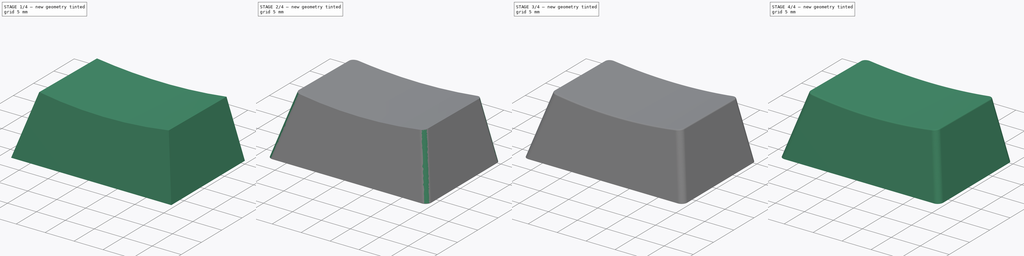
[diagram: build sequence overview — one tinted view per stage of 4, left to right]
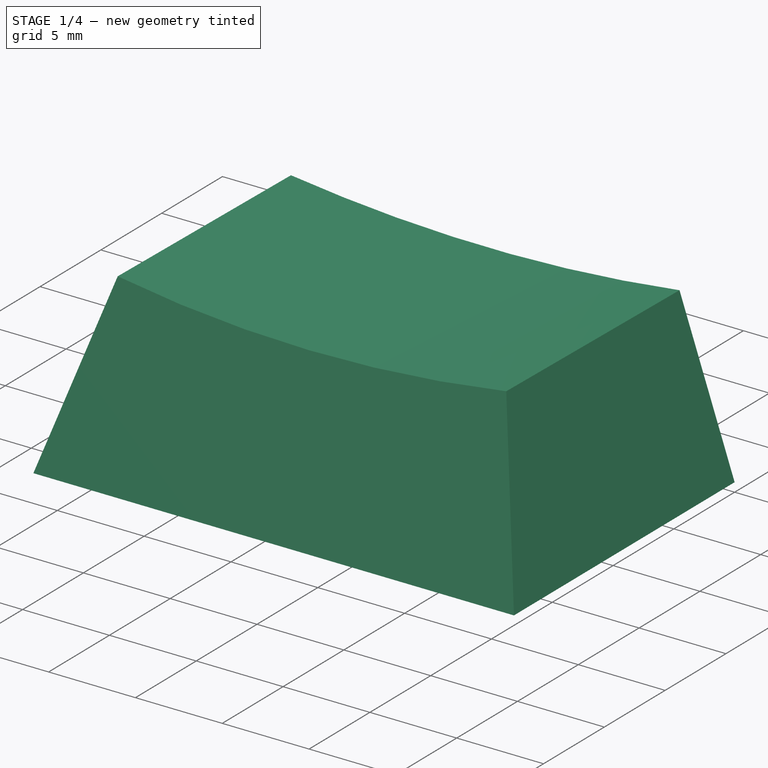
[diagram: stage 1 of 4 — iso view after this stage's code; geometry added in this stage tinted green]
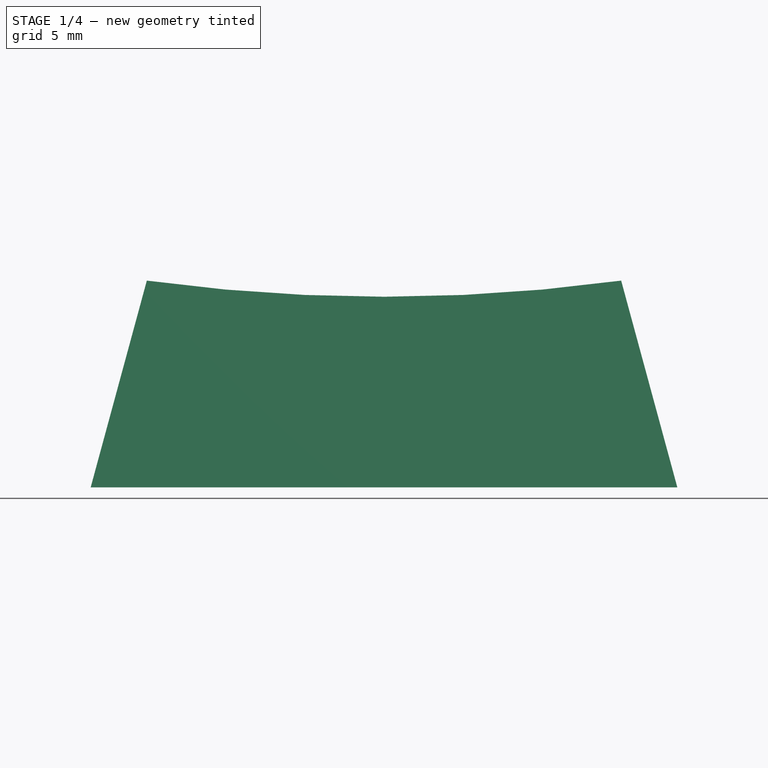
[diagram: stage 1 of 4 — front view after this stage's code; geometry added in this stage tinted green]
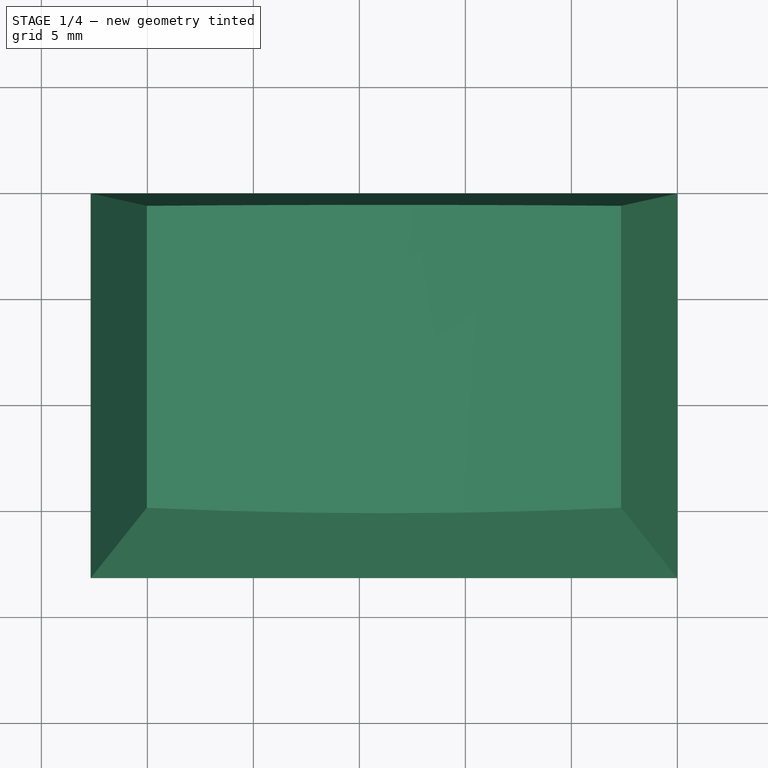
[diagram: stage 1 of 4 — top view after this stage's code; geometry added in this stage tinted green]
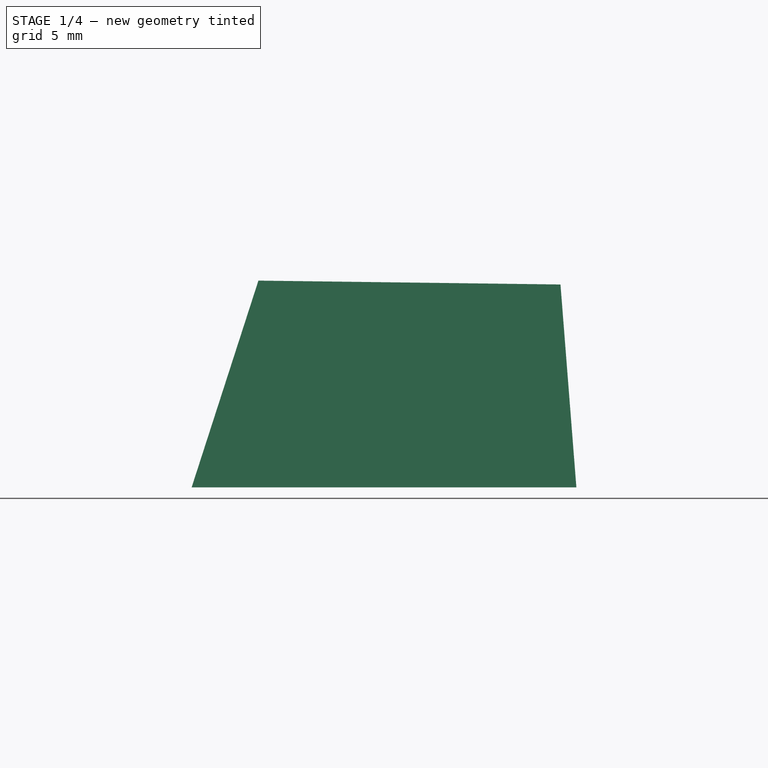
[diagram: stage 1 of 4 — right view after this stage's code; geometry added in this stage tinted green]
FCSTD DOCUMENT  (FreeCAD 1.1R20260325 (Git shallow))
Label: Caps
License: Creative Commons Attribution 4.0
objects: Sketcher::SketchObject×9, Part::DatumPlane×6, PartDesign::Pad×5, Part::DatumLine×4, PartDesign::Fillet×3, PartDesign::Pocket×2, PartDesign::Chamfer×2, App::Point×1, Spreadsheet::Sheet×1, Image::ImagePlane×1, PartDesign::SubtractiveLoft×1, PartDesign::Thickness×1, PartDesign::Body×1
note: 61 computed .brp shape members not serialized (recipe doc carries the construction recipe); baked Part::Feature solids carry a one-line shape summary decoded from their .brp

FEATURE [App::Point] Origin001
  Role = Origin
FEATURE [Spreadsheet::Sheet] Spreadsheet  label="data"
  cells = A1='row; B1='back; C1='front; A2==hiddenref(Body.Row.String); B2(back)==.B5; C2(front)==.C5; A3='R1; B3=8.1; C3=11.5; A4='R2; B4=7.9; C4=10.2; A5='R3; B5=9.6; C5=10.25; A6='R4; B6=12.25; C6=11.9
  expr: .cells.Bind.B2.C2 = tuple(.cells; <<B>> + str(hiddenref(Body.Row) + 3); <<C>> + str(hiddenref(Body.Row) + 3))
FEATURE [Image::ImagePlane] sa_vs_oem_profile_1  label="sa-vs-oem-profile-1"
  Placement = pos=(17,0,-5) rot=(1,0,0;1.5708rad)
  XSize = 117
  YSize = 39
  expr: .Placement.Base.x = -1.5 mm + (<<OEM>>.Row - 1) * 18.5 mm
FEATURE [Sketcher::SketchObject] Sketch
  ArcFitTolerance = 1e-06
  AttachmentSupport = -> [Origin]
  ExternalTypes = [0,0]
  FullyConstrained = true
  MakeInternals = false
  MapMode = 5
  Placement = pos=(0,0,0) rot=(0.57735,0.57735,0.57735;2.0944rad)
  _ExternalGeoVersion = 1
  expr: Constraints[7] = <<data>>.front
  expr: Constraints[9] = <<data>>.back
  sketch-geometry (4):
    g0: LineSegment StartX=0 StartY=0 StartZ=0 EndX=-0.75 EndY=9.57066 EndZ=0
    g1: LineSegment StartX=-0.75 StartY=9.57066 StartZ=0 EndX=-14.9988 EndY=9.75359 EndZ=0
    g2: LineSegment StartX=-14.9988 StartY=9.75359 StartZ=0 EndX=-18.15 EndY=0 EndZ=0
    g3: LineSegment StartX=-18.15 StartY=0 StartZ=0 EndX=0 EndY=0 EndZ=0
  constraints (12):
    c: Coincident(g-1,g0)
    c: Coincident(g0,g1)
    c: Coincident(g1,g2)
    c: PointOnObject(g2,g-1)
    c: Coincident(g2,g3)
    c: Coincident(g3,g0)
    c: Distance(g1,g1) = 14.25
    c: Distance(g2,g2) = 10.25
    c: DistanceX(g3,g3) = 18.15
    c: Distance(g0,g0) = 9.6
    c: DistanceX(g0,g0) = 0.75
    c: Angle(g1,g3) = 0.012838
FEATURE [PartDesign::Pad] Pad  label="Main pad"
  Direction = (1,0,0)
  Length = 27.675
  Length2 = 10
  Profile = -> Sketch
  ReferenceAxis = -> Sketch [N_Axis]
  Reversed = true
  SideType = 0
  Suppressed = false
  Type = 0
  Type2 = 0
  expr: Length = href(<<OEM>>.Widthmm)
FEATURE [Sketcher::SketchObject] Sketch001
  ArcFitTolerance = 1e-06
  AttachmentSupport = -> [Pad]
  ExternalGeometry = -> [Pad]
  ExternalTypes = [0]
  FullyConstrained = true
  MakeInternals = false
  MapMode = 5
  Placement = pos=(0,-16.4346,5.30965) rot=(1,0,0;1.2583rad)
  _ExternalGeoVersion = 1
  expr: Constraints[5] = href(<<OEM>>.Widthmm) - 2.65 mm * 2
  sketch-geometry (5):
    g0: LineSegment [constr] StartX=-27.675 StartY=4.67012 StartZ=0 EndX=0 EndY=4.67012 EndZ=0
    g1: GeomPoint [constr] X=-13.8375 Y=4.67012 Z=0
    g2: LineSegment StartX=-25.025 StartY=4.67012 StartZ=0 EndX=-2.65 EndY=4.67012 EndZ=0
    g3: ArcOfCircle CenterX=-13.8375 CenterY=82.4952 CenterZ=0 NormalX=0 NormalY=0 NormalZ=1 AngleXU=0 Radius=78.6251 StartAngle=4.56962 EndAngle=4.85516
    g4: GeomPoint [constr] X=-13.8375 Y=3.87012 Z=0
  constraints (12):
    c: PointOnObject(g0,g-2)
    c: Horizontal(g0)
    c: Symmetric(g0,g0,g1)
    c: PointOnObject(g2,g0)
    c: Symmetric(g2,g2,g1)
    c: DistanceX(g2,g2) = 22.375
    c: Coincident(g3,g2)
    c: Coincident(g3,g2)
    c: PointOnObject(g4,g3)
    c: Vertical(g4,g1)
    c: DistanceY(g4,g1) = 0.8
    c: Coincident(g0,g-3)
FEATURE [Sketcher::SketchObject] Sketch002
  ArcFitTolerance = 1e-06
  AttachmentSupport = -> [Pad]
  ExternalGeometry = -> [Pad]
  ExternalTypes = [0,0]
  FullyConstrained = true
  MakeInternals = false
  MapMode = 5
  Placement = pos=(0,-16.4346,5.30965) rot=(1,0,0;1.2583rad)
  _ExternalGeoVersion = 1
  expr: Constraints[15] = href(<<OEM>>.Widthmm) - 2.65 mm * 2
  sketch-geometry (8):
    g0: LineSegment StartX=-27.675 StartY=-5.57988 StartZ=0 EndX=-24.5079 EndY=6.67012 EndZ=0
    g1: LineSegment StartX=0 StartY=-5.57988 StartZ=0 EndX=-3.16707 EndY=6.67012 EndZ=0
    g2: LineSegment StartX=-27.675 StartY=6.67012 StartZ=0 EndX=-24.5079 EndY=6.67012 EndZ=0
    g3: LineSegment StartX=0 StartY=6.67012 StartZ=0 EndX=-3.16707 EndY=6.67012 EndZ=0
    g4: GeomPoint [constr] X=-25.025 Y=4.67012 Z=0
    g5: GeomPoint [constr] X=-2.65 Y=4.67012 Z=0
    g6: LineSegment StartX=-27.675 StartY=-5.57988 StartZ=0 EndX=-27.675 EndY=6.67012 EndZ=0
    g7: LineSegment StartX=0 StartY=6.67012 StartZ=0 EndX=0 EndY=-5.57988 EndZ=0
  constraints (21):
    c: Coincident(g0,g-3)
    c: Coincident(g1,g-3)
    c: Horizontal(g0,g1)
    c: Horizontal(g2)
    c: PointOnObject(g3,g-2)
    c: Horizontal(g3)
    c: PointOnObject(g3,g1)
    c: Horizontal(g2,g3)
    c: DistanceY(g-4,g2) = 2
    c: Equal(g2,g3)
    c: Coincident(g0,g2)
    c: PointOnObject(g4,g0)
    c: PointOnObject(g5,g1)
    c: PointOnObject(g5,g-4)
    c: PointOnObject(g4,g-4)
    c: DistanceX(g4,g5) = 22.375
    c: Coincident(g6,g0)
    c: Coincident(g6,g2)
    c: Vertical(g6)
    c: Coincident(g7,g3)
    c: Coincident(g7,g1)
FEATURE [Sketcher::SketchObject] Sketch003
  ArcFitTolerance = 1e-06
  AttachmentSupport = -> [Pad]
  ExternalGeometry = -> [Pad]
  ExternalTypes = [0,0,0]
  FullyConstrained = true
  MakeInternals = false
  MapMode = 5
  Placement = pos=(0,0,0) rot=(0,0.678924,0.734209;3.14159rad)
  _ExternalGeoVersion = 1
  expr: Constraints[20] = href(<<OEM>>.Widthmm) - 2.65 mm * 2
  sketch-geometry (8):
    g0: LineSegment StartX=27.675 StartY=0 StartZ=0 EndX=24.4729 EndY=11.6 EndZ=0
    g1: LineSegment StartX=27.675 StartY=11.6 StartZ=0 EndX=27.675 EndY=0 EndZ=0
    g2: LineSegment StartX=0 StartY=11.6 StartZ=0 EndX=0 EndY=0 EndZ=0
    g3: LineSegment StartX=0 StartY=0 StartZ=0 EndX=3.20208 EndY=11.6 EndZ=0
    g4: LineSegment StartX=27.675 StartY=11.6 StartZ=0 EndX=24.4729 EndY=11.6 EndZ=0
    g5: LineSegment StartX=0 StartY=11.6 StartZ=0 EndX=3.20208 EndY=11.6 EndZ=0
    g6: GeomPoint [constr] X=2.65 Y=9.6 Z=0
    g7: GeomPoint [constr] X=25.025 Y=9.6 Z=0
  constraints (21):
    c: Coincident(g1,g0)
    c: Coincident(g2,g-1)
    c: Coincident(g2,g3)
    c: Vertical(g1)
    c: Horizontal(g4)
    c: PointOnObject(g5,g-2)
    c: Horizontal(g5)
    c: Horizontal(g5,g4)
    c: Coincident(g3,g5)
    c: Equal(g4,g5)
    c: Coincident(g2,g5)
    c: DistanceY(g-3,g2) = 2
    c: Coincident(g1,g4)
    c: PointOnObject(g-3,g1)
    c: Coincident(g0,g4)
    c: Horizontal(g0,g2)
    c: PointOnObject(g7,g0)
    c: PointOnObject(g6,g3)
    c: PointOnObject(g6,g-3)
    c: PointOnObject(g7,g-3)
    c: DistanceX(g6,g7) = 22.375
FEATURE [PartDesign::SubtractiveLoft] SubtractiveLoft  label="Sides"
  BaseFeature = -> Pad
  Closed = false
  Profile = -> Sketch002
  Refine = true
  Ruled = false
  Sections = -> [Sketch003]
  Suppressed = false
FEATURE [PartDesign::Pocket] Pocket  label="Top cylinder"
  BaseFeature = -> SubtractiveLoft
  Direction = (0,0.999918,-0.0128376)
  Length = 5
  Length2 = 5
  Profile = -> Sketch001
  ReferenceAxis = -> Sketch [Edge2]
  SideType = 0
  Suppressed = false
  Type = 1
  Type2 = 0
  expr: Suppressed = href(<<OEM>>.Width) > 6
FEATURE [PartDesign::Thickness] Thickness
  Base = -> Pocket [Face5]
  BaseFeature = -> Pocket
  Intersection = false
  Join = 0
  Mode = 0
  Reversed = true
  SupportTransform = false
  Suppressed = false
  Value = 1.5
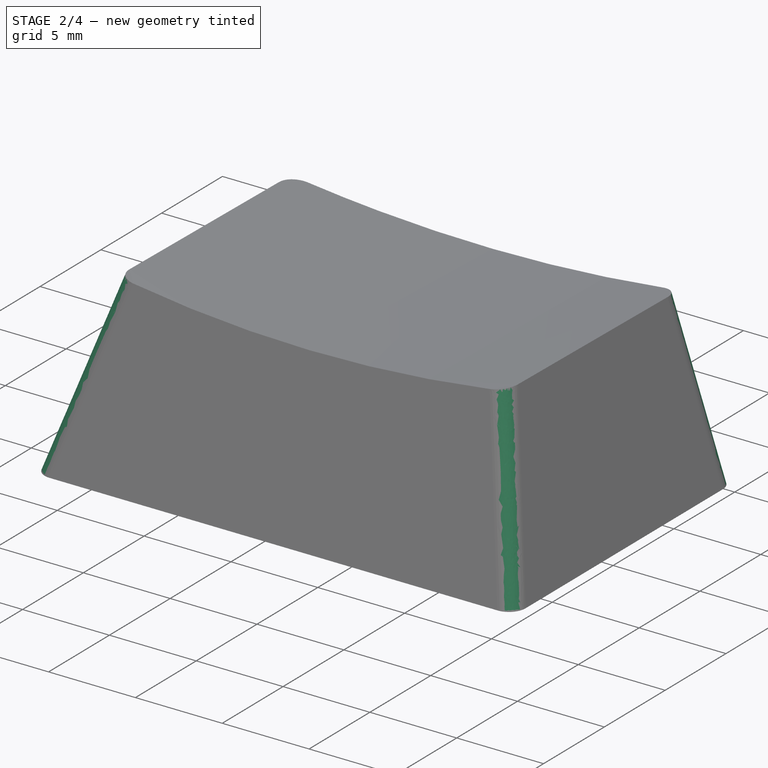
[diagram: stage 2 of 4 — iso view after this stage's code; geometry added in this stage tinted green]
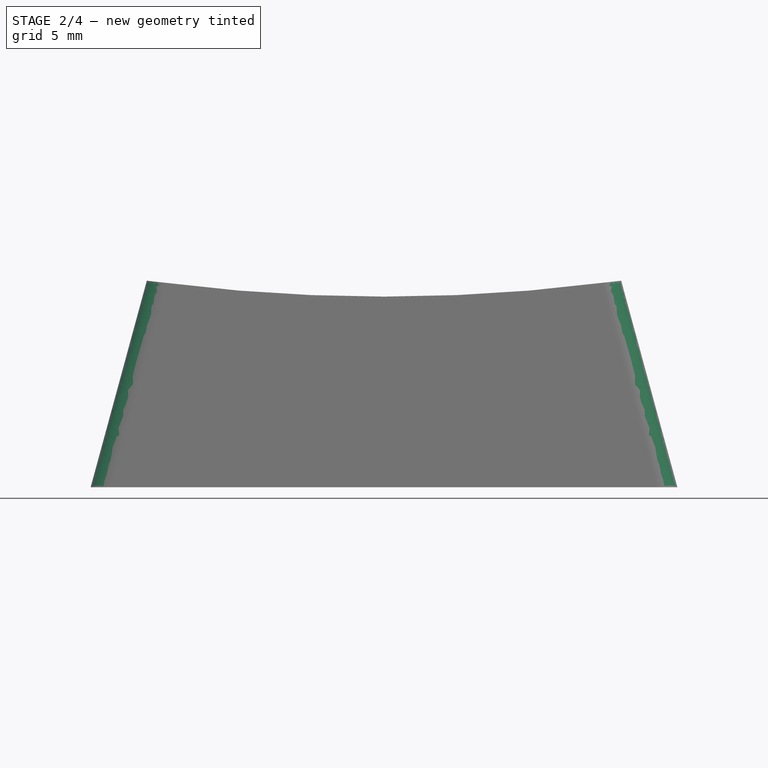
[diagram: stage 2 of 4 — front view after this stage's code; geometry added in this stage tinted green]
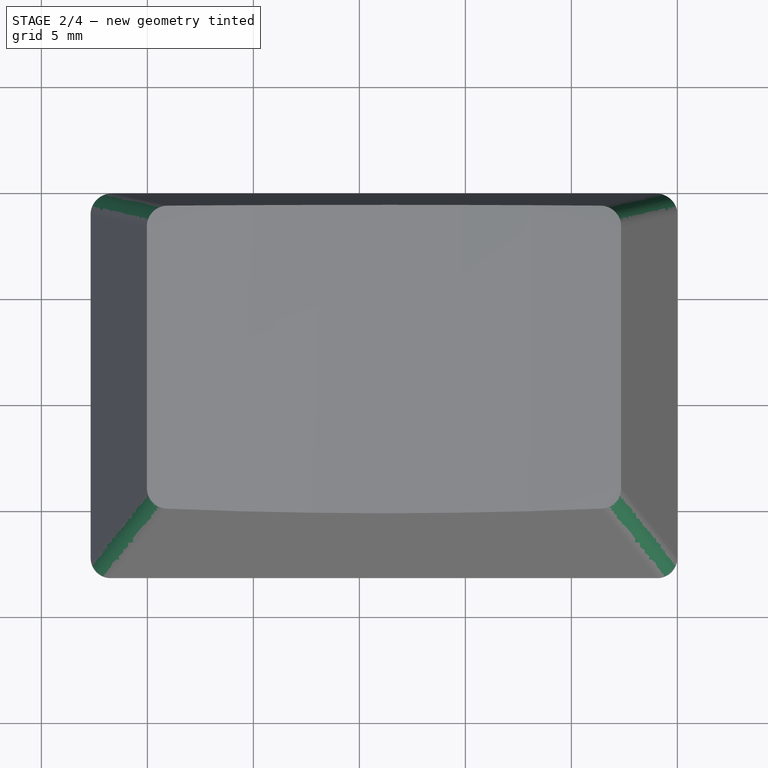
[diagram: stage 2 of 4 — top view after this stage's code; geometry added in this stage tinted green]
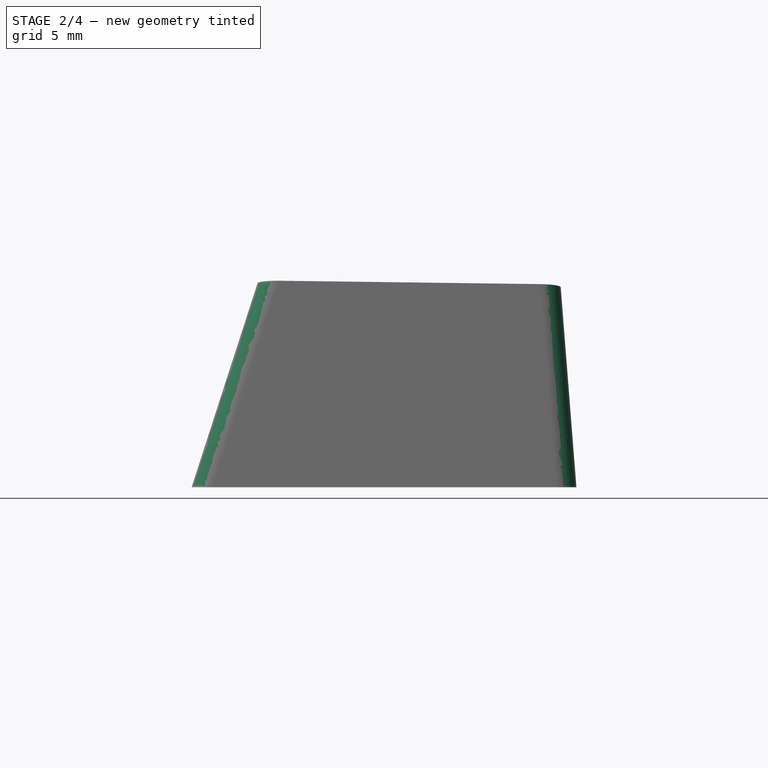
[diagram: stage 2 of 4 — right view after this stage's code; geometry added in this stage tinted green]
FEATURE [Sketcher::SketchObject] Sketch004
  ArcFitTolerance = 1e-06
  AttachmentOffset = pos=(0,0,1.3) rot=(0,0,1;0rad)
  AttachmentSupport = -> [Origin]
  ExternalTypes = [0]
  FullyConstrained = true
  MakeInternals = false
  MapMode = 5
  Placement = pos=(0,0,1.3) rot=(0,0,1;0rad)
  _ExternalGeoVersion = 1
  expr: Constraints[2] = href(<<OEM>>.Widthmm) / 2
  sketch-geometry (13):
    g0: Circle CenterX=-13.8375 CenterY=-9 CenterZ=0 NormalX=0 NormalY=0 NormalZ=1 AngleXU=0 Radius=2.8
    g1: LineSegment StartX=-14.4375 StartY=-6.85 StartZ=0 EndX=-13.2375 EndY=-6.85 EndZ=0
    g2: LineSegment StartX=-13.2375 StartY=-6.85 StartZ=0 EndX=-13.2375 EndY=-8.4 EndZ=0
    g3: LineSegment StartX=-13.2375 StartY=-8.4 StartZ=0 EndX=-11.6875 EndY=-8.4 EndZ=0
    g4: LineSegment StartX=-11.6875 StartY=-8.4 StartZ=0 EndX=-11.6875 EndY=-9.6 EndZ=0
    g5: LineSegment StartX=-11.6875 StartY=-9.6 StartZ=0 EndX=-13.2375 EndY=-9.6 EndZ=0
    g6: LineSegment StartX=-13.2375 StartY=-9.6 StartZ=0 EndX=-13.2375 EndY=-11.15 EndZ=0
    g7: LineSegment StartX=-13.2375 StartY=-11.15 StartZ=0 EndX=-14.4375 EndY=-11.15 EndZ=0
    g8: LineSegment StartX=-14.4375 StartY=-11.15 StartZ=0 EndX=-14.4375 EndY=-9.6 EndZ=0
    g9: LineSegment StartX=-14.4375 StartY=-9.6 StartZ=0 EndX=-15.9875 EndY=-9.6 EndZ=0
    g10: LineSegment StartX=-15.9875 StartY=-9.6 StartZ=0 EndX=-15.9875 EndY=-8.4 EndZ=0
    g11: LineSegment StartX=-15.9875 StartY=-8.4 StartZ=0 EndX=-14.4375 EndY=-8.4 EndZ=0
    g12: LineSegment StartX=-14.4375 StartY=-8.4 StartZ=0 EndX=-14.4375 EndY=-6.85 EndZ=0
  constraints (38):
    c: Diameter(g0) = 5.6
    c: DistanceY(g0,g-1) = 9
    c: DistanceX(g0,g-1) = 13.8375
    c: Horizontal(g1)
    c: Coincident(g1,g2)
    c: Vertical(g2)
    c: Coincident(g2,g3)
    c: Horizontal(g3)
    c: Coincident(g3,g4)
    c: Vertical(g4)
    c: Coincident(g4,g5)
    c: Horizontal(g5)
    c: Coincident(g5,g6)
    c: Vertical(g6)
    c: Coincident(g6,g7)
    c: Horizontal(g7)
    c: Coincident(g7,g8)
    c: Vertical(g8)
    c: Coincident(g8,g9)
    c: Horizontal(g9)
    c: Coincident(g9,g10)
    c: Vertical(g10)
    c: Coincident(g10,g11)
    c: Horizontal(g11)
    c: Coincident(g11,g12)
    c: Coincident(g12,g1)
    c: Vertical(g12)
    c: Vertical(g11,g8)
    c: Vertical(g2,g5)
    c: Horizontal(g11,g2)
    c: Horizontal(g8,g5)
    c: DistanceY(g4,g4) = 1.2
    c: DistanceX(g1,g1) = 1.2
    c: Equal(g2,g3)
    c: Equal(g3,g9)
    c: Equal(g9,g8)
    c: Symmetric(g8,g2,g0)
    c: DistanceY(g6,g1) = 4.3
FEATURE [Part::DatumPlane] DatumPlane
  AttachmentOffset = pos=(0,0,5.9) rot=(0,0,1;0rad)
  AttachmentSupport = -> [Origin]
  MapMode = 5
  Placement = pos=(0,0,5.9) rot=(0,0,1;0rad)
FEATURE [Part::DatumPlane] DatumPlane001
  AttachmentOffset = pos=(0,0,1.5) rot=(0,0,1;0rad)
  AttachmentSupport = -> [SubtractiveLoft]
  MapMode = 45
  Placement = pos=(-24.9562,-8.52731,4.24199) rot=(0.794818,-0.025523,0.606311;3.17882rad)
  expr: .AttachmentOffset.Base.z = Thickness.Value
FEATURE [Part::DatumLine] DatumLine
  AttacherType = Attacher::AttachEngineLine
  AttachmentSupport = -> [DatumPlane001,DatumPlane]
  MapMode = 30
  Placement = pos=(-24.5017,-8.52795,5.9) rot=(1,-0.000706,-0.000706;1.5708rad)
FEATURE [Part::DatumPlane] DatumPlane002
  AttachmentOffset = pos=(0,0,-1.5) rot=(0,0,1;0rad)
  AttachmentSupport = -> [SubtractiveLoft]
  MapMode = 45
  Placement = pos=(-2.71884,-8.52731,4.24199) rot=(0.606404,-0.018616,0.794939;3.19264rad)
  expr: .AttachmentOffset.Base.z = -Thickness.Value
FEATURE [Part::DatumLine] DatumLine001
  AttacherType = Attacher::AttachEngineLine
  AttachmentSupport = -> [DatumPlane,DatumPlane002]
  MapMode = 30
  Placement = pos=(-3.1853,-0.00449521,5.9) rot=(-0.000499,0.707107,0.707107;3.14259rad)
FEATURE [Part::DatumPlane] DatumPlane003
  AttachmentOffset = pos=(0,0,-1.5) rot=(0,0,1;0rad)
  AttachmentSupport = -> [SubtractiveLoft]
  MapMode = 5
  Placement = pos=(0,-15.0072,4.8485) rot=(1,0,0;1.2583rad)
  expr: .AttachmentOffset.Base.z = -Thickness.Value
FEATURE [Part::DatumLine] DatumLine002
  AttacherType = Attacher::AttachEngineLine
  AttachmentSupport = -> [DatumPlane003,DatumPlane]
  MapMode = 30
  Placement = pos=(0,-14.6675,5.9) rot=(0.57735,-0.57735,-0.57735;2.0944rad)
FEATURE [Part::DatumPlane] DatumPlane004
  AttachmentOffset = pos=(0,0,-1.5) rot=(0,0,1;0rad)
  AttachmentSupport = -> [Pad]
  MapMode = 5
  Placement = pos=(0,-1.49542,-0.117188) rot=(0,0.678924,0.734209;3.14159rad)
  expr: .AttachmentOffset.Base.z = -Thickness.Value
FEATURE [Part::DatumLine] DatumLine003
  AttacherType = Attacher::AttachEngineLine
  AttachmentSupport = -> [DatumPlane004,DatumPlane]
  MapMode = 30
  Placement = pos=(0,-1.96695,5.9) rot=(0.57735,0.57735,0.57735;2.0944rad)
FEATURE [Sketcher::SketchObject] Sketch005
  ArcFitTolerance = 1e-06
  AttachmentOffset = pos=(0,0,5.9) rot=(0,0,1;0rad)
  AttachmentSupport = -> [Origin]
  ExternalGeometry = -> [DatumLine001,DatumLine,DatumLine002,DatumLine003]
  ExternalTypes = [0,0,0,0,0]
  FullyConstrained = true
  MakeInternals = false
  MapMode = 5
  Placement = pos=(0,0,5.9) rot=(0,0,1;0rad)
  _ExternalGeoVersion = 1
  expr: Constraints[33] = href(<<OEM>>.Widthmm) / 2
  sketch-geometry (21):
    g0: LineSegment [constr] StartX=-3.17261 StartY=-9 StartZ=0 EndX=-24.5024 EndY=-9 EndZ=0
    g1: LineSegment [constr] StartX=-13.8375 StartY=-1.96695 StartZ=0 EndX=-13.8375 EndY=-14.6675 EndZ=0
    g2: LineSegment StartX=-3.17331 StartY=-8.5 StartZ=0 EndX=-3.1719 EndY=-9.5 EndZ=0
    g3: LineSegment StartX=-13.3375 StartY=-1.96695 StartZ=0 EndX=-14.3375 EndY=-1.96695 EndZ=0
    g4: LineSegment StartX=-3.17331 StartY=-8.5 StartZ=0 EndX=-11.1333 EndY=-8.5 EndZ=0
    g5: LineSegment StartX=-3.1719 StartY=-9.5 StartZ=0 EndX=-11.1333 EndY=-9.5 EndZ=0
    g6: LineSegment StartX=-13.3375 StartY=-6.29584 StartZ=0 EndX=-13.3375 EndY=-1.96695 EndZ=0
    g7: LineSegment StartX=-14.3375 StartY=-6.29584 StartZ=0 EndX=-14.3375 EndY=-1.96695 EndZ=0
    g8: LineSegment StartX=-13.3375 StartY=-11.7042 StartZ=0 EndX=-13.3375 EndY=-14.6675 EndZ=0
    g9: LineSegment StartX=-14.3375 StartY=-11.7042 StartZ=0 EndX=-14.3375 EndY=-14.6675 EndZ=0
    g10: LineSegment StartX=-13.3375 StartY=-14.6675 StartZ=0 EndX=-14.3375 EndY=-14.6675 EndZ=0
    g11: LineSegment StartX=-16.5417 StartY=-8.5 StartZ=0 EndX=-24.5017 EndY=-8.5 EndZ=0
    g12: LineSegment StartX=-16.5417 StartY=-9.5 StartZ=0 EndX=-24.5031 EndY=-9.5 EndZ=0
    g13: LineSegment StartX=-24.5017 StartY=-8.5 StartZ=0 EndX=-24.5031 EndY=-9.5 EndZ=0
    g14: GeomPoint [constr] X=-13.8375 Y=-9 Z=0
    g15: LineSegment [constr] StartX=-13.8375 StartY=-9 StartZ=0 EndX=-13.3375 EndY=-6.29584 EndZ=0
    g16: LineSegment [constr] StartX=-13.8375 StartY=-9 StartZ=0 EndX=-14.3375 EndY=-11.7042 EndZ=0
    g17: LineSegment StartX=-14.3375 StartY=-6.29584 StartZ=0 EndX=-13.3375 EndY=-6.29584 EndZ=0
    g18: LineSegment StartX=-11.1333 StartY=-8.5 StartZ=0 EndX=-11.1333 EndY=-9.5 EndZ=0
    g19: LineSegment StartX=-13.3375 StartY=-11.7042 StartZ=0 EndX=-14.3375 EndY=-11.7042 EndZ=0
    g20: LineSegment StartX=-16.5417 StartY=-9.5 StartZ=0 EndX=-16.5417 EndY=-8.5 EndZ=0
  constraints (55):
    c: Horizontal(g0)
    c: PointOnObject(g0,g-4)
    c: PointOnObject(g0,g-3)
    c: PointOnObject(g1,g-6)
    c: PointOnObject(g1,g-5)
    c: Vertical(g1)
    c: Vertical(g7,g9)
    c: Horizontal(g4,g11)
    c: PointOnObject(g2,g-3)
    c: Symmetric(g2,g2,g0)
    c: DistanceY(g2,g2) = 1
    c: PointOnObject(g3,g-6)
    c: Symmetric(g3,g3,g1)
    c: Coincident(g4,g2)
    c: Coincident(g5,g2)
    c: Coincident(g6,g3)
    c: Coincident(g7,g3)
    c: Coincident(g10,g8)
    c: Coincident(g10,g9)
    c: Horizontal(g12)
    c: Coincident(g13,g11)
    c: Coincident(g12,g13)
    c: PointOnObject(g11,g-4)
    c: PointOnObject(g12,g-4)
    c: Horizontal(g11)
    c: DistanceX(g3,g3) = 1
    c: Vertical(g6)
    c: Horizontal(g4)
    c: Vertical(g8)
    c: Vertical(g9)
    c: PointOnObject(g9,g-5)
    c: PointOnObject(g8,g-5)
    c: PointOnObject(g14,g1)
    c: DistanceX(g14,g-1) = 13.8375
    c: DistanceY(g14,g-1) = 9
    c: Coincident(g15,g14)
    c: Coincident(g15,g6)
    c: Coincident(g16,g14)
    c: Coincident(g16,g9)
    c: Symmetric(g7,g6,g1)
    c: Symmetric(g5,g4,g0)
    c: Symmetric(g9,g8,g1)
    c: Symmetric(g12,g11,g0)
    c: Coincident(g17,g7)
    c: Coincident(g17,g6)
    c: Coincident(g18,g4)
    c: Coincident(g18,g5)
    c: Coincident(g19,g8)
    c: Coincident(g19,g9)
    c: Coincident(g20,g12)
    c: Coincident(g20,g11)
    c: Equal(g16,g15)
    c: Distance(g9,g6) = 5.5
    c: Symmetric(g12,g4,g14)
    c: Distance(g11,g5) = 5.5
FEATURE [Part::DatumPlane] DatumPlane005
  AttachmentOffset = pos=(0,0,-0.8) rot=(0,0,1;0rad)
  AttachmentSupport = -> [Pad]
  MapMode = 5
  Placement = pos=(0,0.112461,8.75952) rot=(-1,0,0;0.012838rad)
FEATURE [PartDesign::Pad] Pad001  label="Stem"
  BaseFeature = -> Thickness
  Direction = (0,0,1)
  Length = 10
  Length2 = 10
  Profile = -> Sketch004
  ReferenceAxis = -> Sketch004 [N_Axis]
  SideType = 0
  Suppressed = false
  Type = 3
  Type2 = 0
  UpToFace = -> DatumPlane005
  UpToShape = -> [Thickness]
FEATURE [PartDesign::Pad] Pad002  label="Reinforcement"
  BaseFeature = -> Pad001
  Direction = (0,0,1)
  Length = 4.8
  Length2 = 10
  Profile = -> Sketch005
  ReferenceAxis = -> Sketch005 [N_Axis]
  Refine = true
  SideType = 0
  Suppressed = false
  Type = 3
  Type2 = 0
  UpToFace = -> DatumPlane005
FEATURE [PartDesign::Fillet] Fillet  label="External side fillets"
  Base = -> Pad002 [Edge11,Edge3,Edge7,Edge1]
  BaseFeature = -> Pad002
  Radius = 1
  SupportTransform = false
  Suppressed = false
  UseAllEdges = false
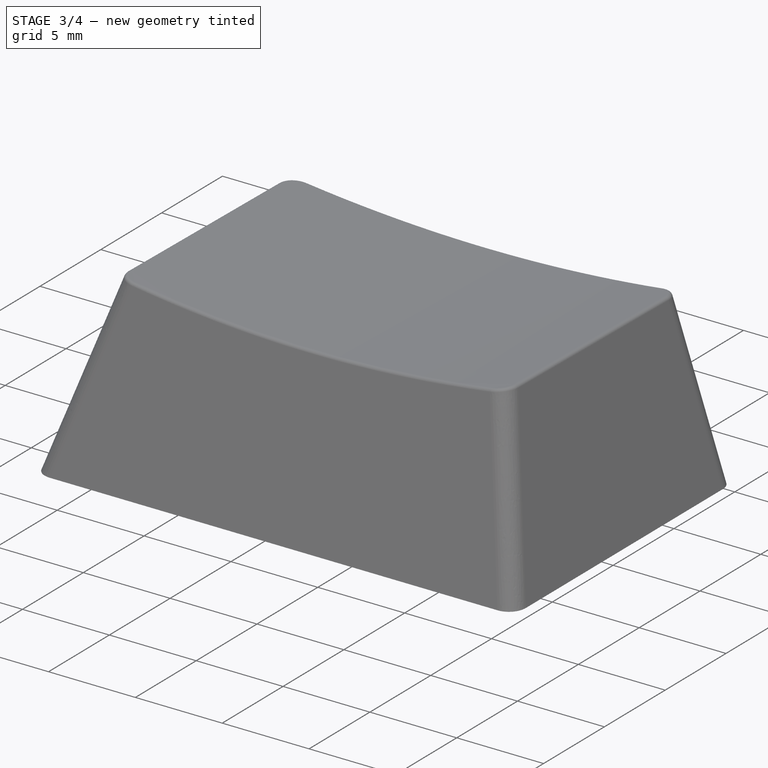
[diagram: stage 3 of 4 — iso view after this stage's code; geometry added in this stage tinted green]
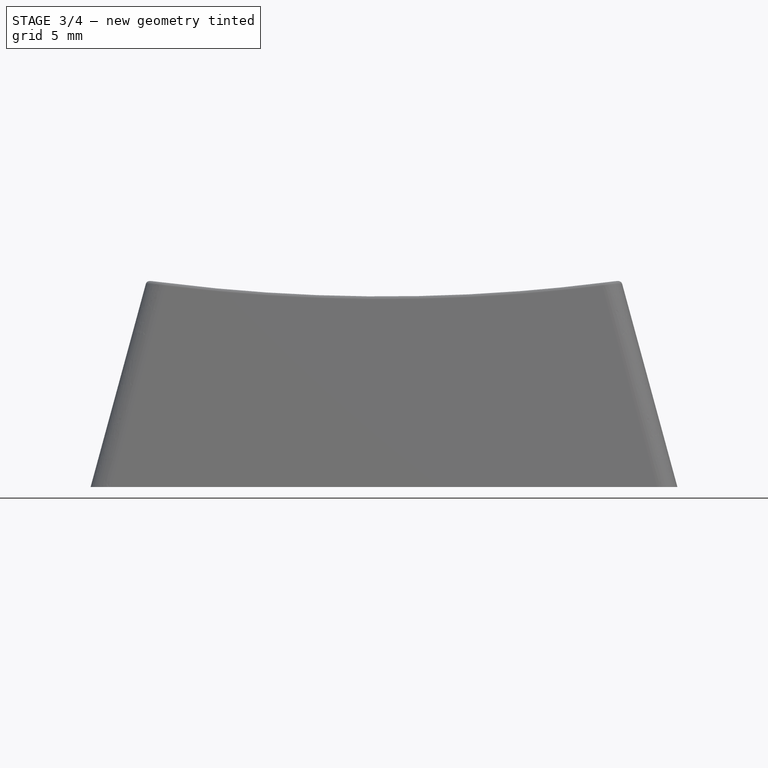
[diagram: stage 3 of 4 — front view after this stage's code; geometry added in this stage tinted green]
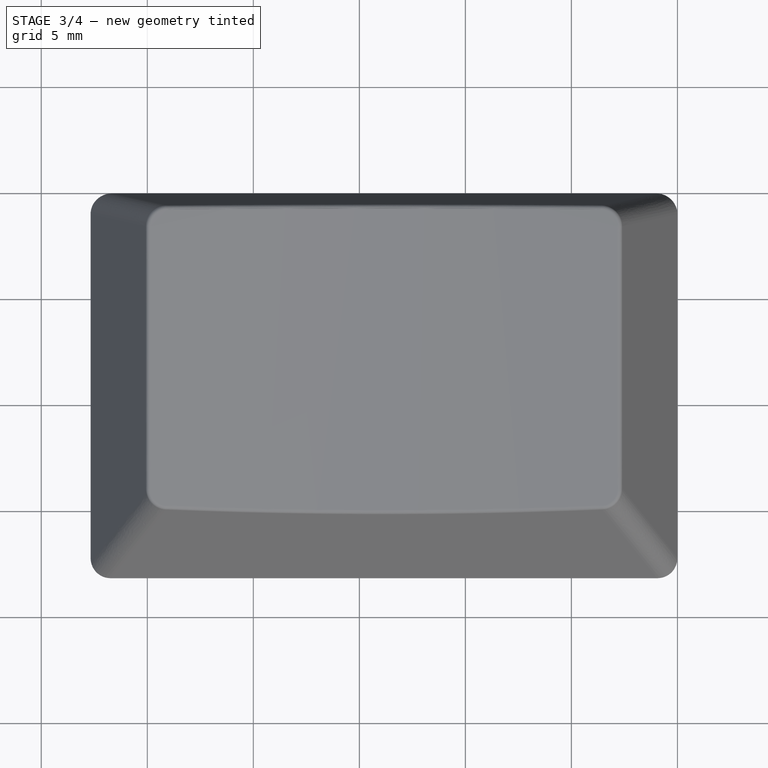
[diagram: stage 3 of 4 — top view after this stage's code; geometry added in this stage tinted green]
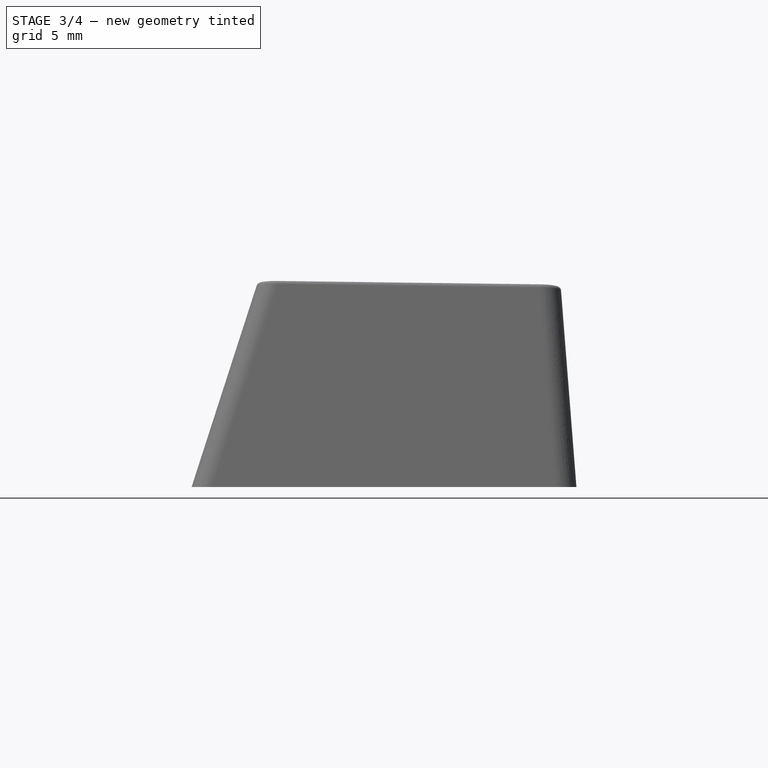
[diagram: stage 3 of 4 — right view after this stage's code; geometry added in this stage tinted green]
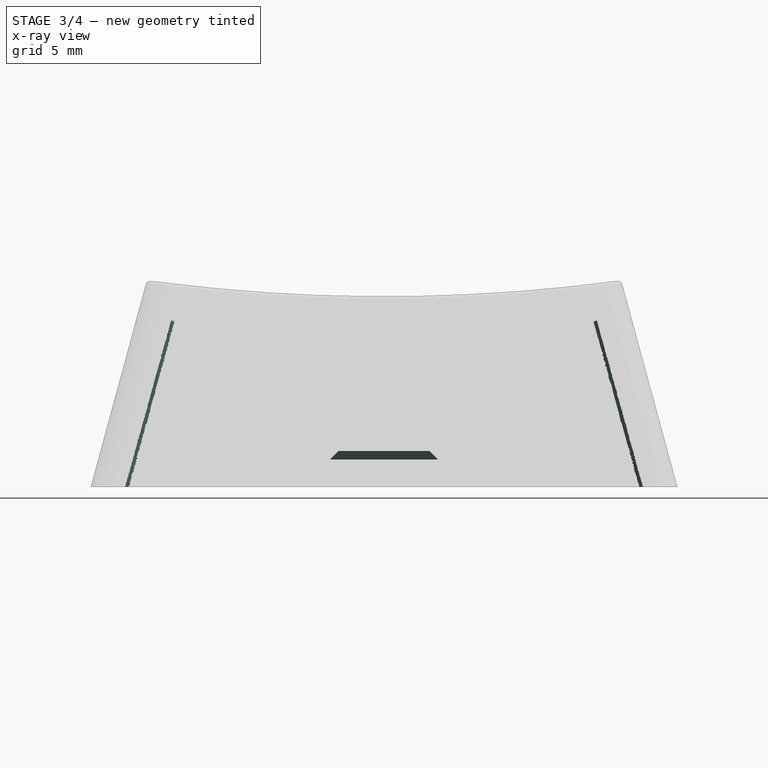
[diagram: stage 3 of 4 — x-ray composite at the front view; earlier geometry ghosted, this stage's added geometry solid]
FEATURE [PartDesign::Fillet] Fillet001  label="Internal side fillets"
  Base = -> Fillet [Edge47,Edge29,Edge36,Edge35]
  BaseFeature = -> Fillet
  Radius = 0.5
  SupportTransform = false
  Suppressed = false
  UseAllEdges = false
FEATURE [PartDesign::Fillet] Fillet002  label="Top fillet"
  Base = -> Fillet001 [Edge64]
  BaseFeature = -> Fillet001
  Radius = 0.2
  SupportTransform = false
  Suppressed = false
  UseAllEdges = false
FEATURE [PartDesign::Chamfer] Chamfer  label="Stem chamfer"
  Angle = 45
  Base = -> Fillet002 [Edge126,Edge123,Edge132,Edge129,Edge125,Edge124,Edge134,Edge133,Edge131,Edge130,Edge128,Edge127]
  BaseFeature = -> Fillet002
  ChamferType = 0
  FlipDirection = false
  Size = 0.4
  Size2 = 1
  SupportTransform = false
  Suppressed = false
  UseAllEdges = false
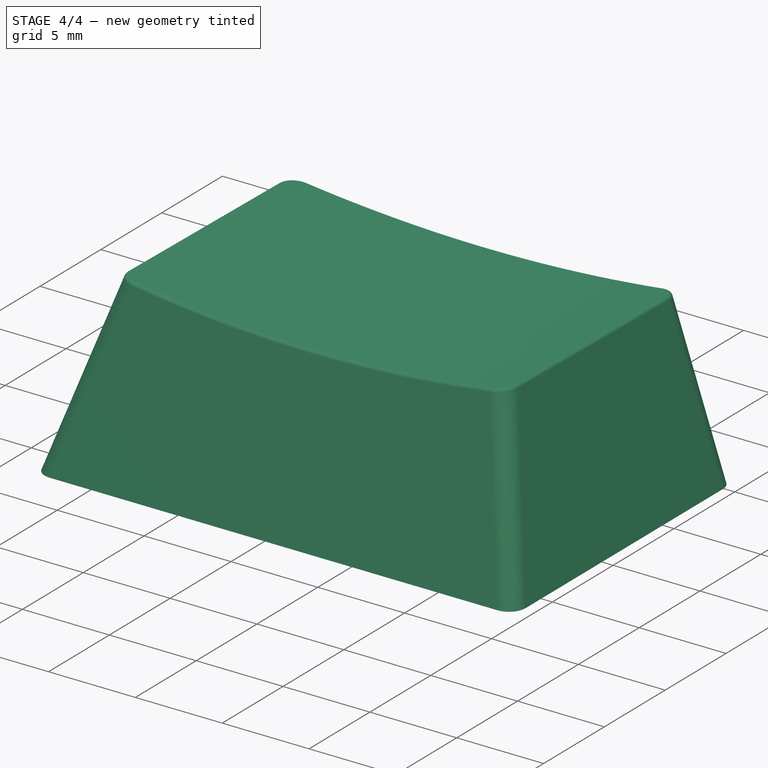
[diagram: stage 4 of 4 — iso view after this stage's code; geometry added in this stage tinted green]
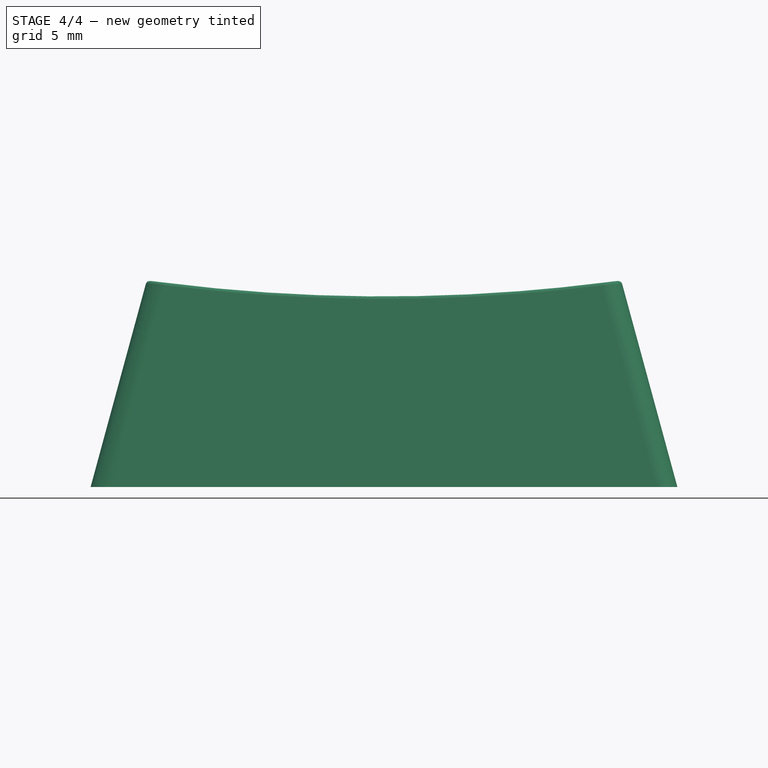
[diagram: stage 4 of 4 — front view after this stage's code; geometry added in this stage tinted green]
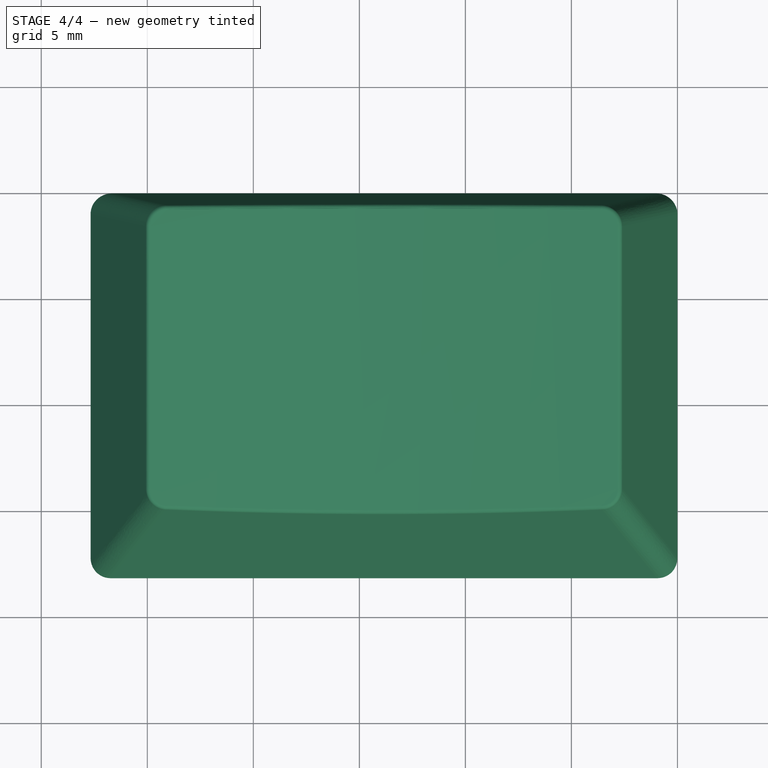
[diagram: stage 4 of 4 — top view after this stage's code; geometry added in this stage tinted green]
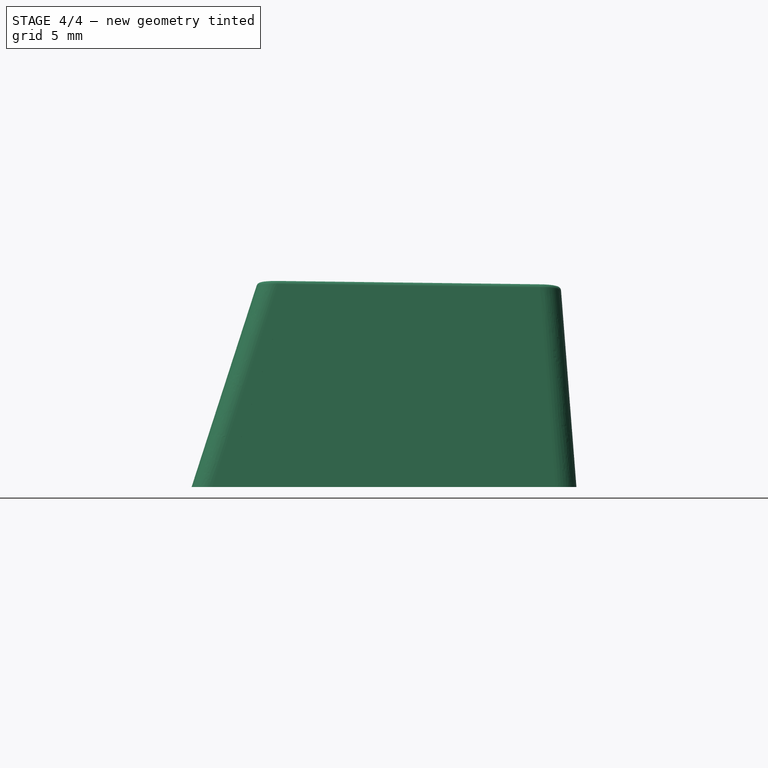
[diagram: stage 4 of 4 — right view after this stage's code; geometry added in this stage tinted green]
FEATURE [Sketcher::SketchObject] Sketch006
  ArcFitTolerance = 1e-06
  AttachmentSupport = -> [DatumPlane]
  ExternalGeometry = -> [Pad,DatumLine003,DatumLine002]
  ExternalTypes = [0,0,0,0,0]
  FullyConstrained = true
  MakeInternals = false
  MapMode = 5
  Placement = pos=(0,0,5.9) rot=(0,0,1;0rad)
  _ExternalGeoVersion = 1
  expr: Constraints[32] = href(<<OEM>>.Width) < 7 ? 24.876 mm : 101
  expr: Constraints[8] = href(<<OEM>>.Width) < 7 ? 23.876 mm : 100
  sketch-geometry (14):
    g0: LineSegment [constr] StartX=0 StartY=-9.075 StartZ=0 EndX=-27.675 EndY=-9.075 EndZ=0
    g1: LineSegment [constr] StartX=-13.8375 StartY=-18.15 StartZ=0 EndX=-13.8375 EndY=0 EndZ=0
    g2: GeomPoint [constr] X=-13.8375 Y=-9.075 Z=0
    g3: GeomPoint [constr] X=-1.8995 Y=-9.075 Z=0
    g4: GeomPoint [constr] X=-25.7755 Y=-9.075 Z=0
    g5: LineSegment StartX=-1.3995 StartY=-1.96695 StartZ=0 EndX=-2.3995 EndY=-1.96695 EndZ=0
    g6: LineSegment StartX=-2.3995 StartY=-1.96695 StartZ=0 EndX=-2.3995 EndY=-14.6675 EndZ=0
    g7: LineSegment StartX=-2.3995 StartY=-14.6675 StartZ=0 EndX=-1.3995 EndY=-14.6675 EndZ=0
    g8: LineSegment StartX=-1.3995 StartY=-14.6675 StartZ=0 EndX=-1.3995 EndY=-1.96695 EndZ=0
    g9: GeomPoint [constr] X=-1.8995 Y=-14.6675 Z=0
    g10: LineSegment StartX=-26.2755 StartY=-14.6675 StartZ=0 EndX=-25.2755 EndY=-14.6675 EndZ=0
    g11: LineSegment StartX=-25.2755 StartY=-14.6675 StartZ=0 EndX=-25.2755 EndY=-1.96695 EndZ=0
    g12: LineSegment StartX=-26.2755 StartY=-14.6675 StartZ=0 EndX=-26.2755 EndY=-1.96695 EndZ=0
    g13: LineSegment StartX=-26.2755 StartY=-1.96695 StartZ=0 EndX=-25.2755 EndY=-1.96695 EndZ=0
  constraints (33):
    c: Symmetric(g-4,g-3,g0)
    c: Symmetric(g-5,g-1,g0)
    c: Symmetric(g-1,g-3,g1)
    c: Symmetric(g-5,g-4,g1)
    c: PointOnObject(g2,g1)
    c: PointOnObject(g2,g0)
    c: PointOnObject(g3,g0)
    c: Symmetric(g3,g4,g2)
    c: DistanceX(g4,g3) = 23.876
    c: Coincident(g5,g6)
    c: Coincident(g6,g7)
    c: Coincident(g7,g8)
    c: Coincident(g8,g5)
    c: Horizontal(g5)
    c: Horizontal(g7)
    c: Vertical(g6)
    c: Vertical(g8)
    c: PointOnObject(g5,g-6)
    c: PointOnObject(g7,g-7)
    c: DistanceX(g7,g7) = 1
    c: Symmetric(g7,g6,g9)
    c: Vertical(g9,g3)
    c: Coincident(g10,g11)
    c: Horizontal(g10)
    c: Vertical(g11)
    c: Horizontal(g10,g6)
    c: Symmetric(g5,g11,g1)
    c: Coincident(g10,g12)
    c: Vertical(g12)
    c: Coincident(g12,g13)
    c: Coincident(g13,g11)
    c: Horizontal(g13)
    c: DistanceX(g12,g5) = 24.876
FEATURE [PartDesign::Pad] Pad003  label="Secondary reinforcement"
  BaseFeature = -> Chamfer
  Direction = (0,0,1)
  Length = 10
  Length2 = 10
  Profile = -> Sketch006
  ReferenceAxis = -> Sketch006 [N_Axis]
  Refine = true
  SideType = 0
  Suppressed = true
  Type = 3
  Type2 = 0
  UpToFace = -> DatumPlane005
  expr: Suppressed = href(<<OEM>>.Width) < 4
FEATURE [Sketcher::SketchObject] Sketch007
  ArcFitTolerance = 1e-06
  AttachmentSupport = -> [Pad001]
  ExternalGeometry = -> [Sketch006]
  ExternalTypes = [0,0,0]
  FullyConstrained = true
  MakeInternals = false
  MapMode = 5
  Placement = pos=(0,0,1.3) rot=(1,0,0;3.14159rad)
  _ExternalGeoVersion = 1
  sketch-geometry (7):
    g0: GeomPoint [constr] X=-1.8995 Y=9 Z=0
    g1: GeomPoint [constr] X=-1.8995 Y=1.96695 Z=0
    g2: GeomPoint [constr] X=-13.8375 Y=1.96695 Z=0
    g3: GeomPoint [constr] X=-13.8375 Y=9 Z=0
    g4: GeomPoint [constr] X=-25.7755 Y=9 Z=0
    g5: Circle CenterX=-1.8995 CenterY=9 CenterZ=0 NormalX=0 NormalY=0 NormalZ=1 AngleXU=0 Radius=2.8
    g6: Circle CenterX=-25.7755 CenterY=9 CenterZ=0 NormalX=0 NormalY=0 NormalZ=1 AngleXU=0 Radius=2.8
  constraints (11):
    c: Symmetric(g-4,g-3,g1)
    c: Vertical(g0,g1)
    c: Symmetric(g-3,g-5,g2)
    c: Vertical(g2,g3)
    c: Horizontal(g0,g3)
    c: Symmetric(g0,g4,g3)
    c: Coincident(g5,g0)
    c: Coincident(g6,g4)
    c: Equal(g5,g6)
    c: Diameter(g5) = 5.6
    c: DistanceY(g-1,g0) = 9
FEATURE [PartDesign::Pad] Pad004  label="Stabilizer stem cylinder"
  BaseFeature = -> Pad003
  Direction = (0,0,-1)
  Length = 10
  Length2 = 10
  Profile = -> Sketch007
  ReferenceAxis = -> Sketch007 [N_Axis]
  Refine = true
  SideType = 0
  Suppressed = true
  Type = 3
  Type2 = 0
  UpToFace = -> DatumPlane005
  expr: Suppressed = href(<<OEM>>.Width) < 4
FEATURE [Sketcher::SketchObject] Sketch008
  ArcFitTolerance = 1e-06
  AttachmentSupport = -> [Pad001]
  ExternalGeometry = -> [Sketch007]
  ExternalTypes = [0,0,0,0,0]
  FullyConstrained = true
  MakeInternals = false
  MapMode = 5
  Placement = pos=(0,0,1.3) rot=(1,0,0;3.14159rad)
  _ExternalGeoVersion = 1
  sketch-geometry (24):
    g0: LineSegment StartX=-25.1755 StartY=11.125 StartZ=0 EndX=-26.3755 EndY=11.125 EndZ=0
    g1: LineSegment StartX=-26.3755 StartY=11.125 StartZ=0 EndX=-26.3755 EndY=9.6 EndZ=0
    g2: LineSegment StartX=-23.6505 StartY=9.6 StartZ=0 EndX=-23.6505 EndY=8.4 EndZ=0
    g3: LineSegment StartX=-26.3755 StartY=8.4 StartZ=0 EndX=-26.3755 EndY=6.875 EndZ=0
    g4: LineSegment StartX=-26.3755 StartY=6.875 StartZ=0 EndX=-25.1755 EndY=6.875 EndZ=0
    g5: LineSegment StartX=-25.1755 StartY=6.875 StartZ=0 EndX=-25.1755 EndY=8.4 EndZ=0
    g6: LineSegment StartX=-27.9005 StartY=8.4 StartZ=0 EndX=-27.9005 EndY=9.6 EndZ=0
    g7: LineSegment StartX=-25.1755 StartY=9.6 StartZ=0 EndX=-25.1755 EndY=11.125 EndZ=0
    g8: LineSegment StartX=-1.2995 StartY=11.125 StartZ=0 EndX=-2.4995 EndY=11.125 EndZ=0
    g9: LineSegment StartX=-2.4995 StartY=11.125 StartZ=0 EndX=-2.4995 EndY=9.6 EndZ=0
    g10: LineSegment StartX=-2.4995 StartY=8.4 StartZ=0 EndX=-2.4995 EndY=6.875 EndZ=0
    g11: LineSegment StartX=-2.4995 StartY=6.875 StartZ=0 EndX=-1.2995 EndY=6.875 EndZ=0
    g12: LineSegment StartX=-1.2995 StartY=6.875 StartZ=0 EndX=-1.2995 EndY=8.4 EndZ=0
    g13: LineSegment StartX=-4.0245 StartY=8.4 StartZ=0 EndX=-4.0245 EndY=9.6 EndZ=0
    g14: LineSegment StartX=-1.2995 StartY=9.6 StartZ=0 EndX=-1.2995 EndY=11.125 EndZ=0
    g15: LineSegment StartX=-27.9005 StartY=9.6 StartZ=0 EndX=-26.3755 EndY=9.6 EndZ=0
    g16: LineSegment StartX=-27.9005 StartY=8.4 StartZ=0 EndX=-26.3755 EndY=8.4 EndZ=0
    g17: LineSegment StartX=-25.1755 StartY=9.6 StartZ=0 EndX=-23.6505 EndY=9.6 EndZ=0
    g18: LineSegment StartX=-25.1755 StartY=8.4 StartZ=0 EndX=-23.6505 EndY=8.4 EndZ=0
    g19: LineSegment StartX=-4.0245 StartY=9.6 StartZ=0 EndX=-2.4995 EndY=9.6 EndZ=0
    g20: LineSegment StartX=-1.2995 StartY=9.6 StartZ=0 EndX=0.2255 EndY=9.6 EndZ=0
    g21: LineSegment StartX=0.2255 StartY=8.4 StartZ=0 EndX=-1.2995 EndY=8.4 EndZ=0
    g22: LineSegment StartX=-2.4995 StartY=8.4 StartZ=0 EndX=-4.0245 EndY=8.4 EndZ=0
    g23: LineSegment StartX=0.2255 StartY=8.4 StartZ=0 EndX=0.2255 EndY=9.6 EndZ=0
  constraints (70):
    c: Horizontal(g0)
    c: Coincident(g0,g1)
    c: Vertical(g1)
    c: Vertical(g2)
    c: Vertical(g3)
    c: Coincident(g3,g4)
    c: Horizontal(g4)
    c: Coincident(g4,g5)
    c: Vertical(g5)
    c: Vertical(g6)
    c: Coincident(g7,g0)
    c: Vertical(g7)
    c: Horizontal(g7,g1)
    c: Horizontal(g5,g3)
    c: Vertical(g7,g5)
    c: Vertical(g1,g3)
    c: Equal(g0,g2)
    c: Symmetric(g5,g1,g-3)
    c: Horizontal(g8)
    c: Coincident(g8,g9)
    c: Vertical(g9)
    c: Vertical(g10)
    c: Coincident(g10,g11)
    c: Horizontal(g11)
    c: Coincident(g11,g12)
    c: Vertical(g12)
    c: Vertical(g13)
    c: Coincident(g14,g8)
    c: Vertical(g14)
    c: Vertical(g14,g12)
    c: Vertical(g9,g10)
    c: Horizontal(g14,g9)
    c: Horizontal(g2,g13)
    c: Horizontal(g0,g8)
    c: Horizontal(g12,g10)
    c: Symmetric(g12,g9,g-4)
    c: Coincident(g15,g6)
    c: Coincident(g15,g1)
    c: Horizontal(g15)
    c: Coincident(g16,g6)
    c: Coincident(g16,g3)
    c: Horizontal(g16)
    c: Coincident(g17,g7)
    c: Coincident(g17,g2)
    c: Horizontal(g17)
    c: Coincident(g18,g5)
    c: Coincident(g18,g2)
    c: Horizontal(g18)
    c: Equal(g7,g17)
    c: Equal(g17,g16)
    c: Equal(g16,g3)
    c: DistanceX(g6,g2) = 4.25
    c: DistanceX(g0,g0) = 1.2
    c: DistanceX(g13,g20) = 4.25
    c: DistanceX(g8,g8) = 1.2
    c: Coincident(g19,g13)
    c: Coincident(g19,g9)
    c: Horizontal(g19)
    c: Coincident(g20,g14)
    c: Horizontal(g20)
    c: Coincident(g21,g12)
    c: Coincident(g22,g10)
    c: Coincident(g22,g13)
    c: Horizontal(g22)
    c: Equal(g14,g20)
    c: Equal(g22,g10)
    c: Horizontal(g21)
    c: Coincident(g23,g21)
    c: Coincident(g23,g20)
    c: Vertical(g23)
FEATURE [PartDesign::Pocket] Pocket001  label="Stabilizer crosses"
  BaseFeature = -> Pad004
  Direction = (0,0,1)
  Length = 5
  Length2 = 1
  Profile = -> Sketch008
  ReferenceAxis = -> Sketch008 [N_Axis]
  SideType = 1
  Suppressed = true
  Type = 3
  Type2 = 0
  UpToFace = -> DatumPlane005
  expr: Suppressed = href(<<OEM>>.Width) < 4
FEATURE [PartDesign::Chamfer] Chamfer001
  Angle = 45
  Base = -> Pocket001 [?Edge192,?Edge193,?Edge194,?Edge195,?Edge196,?Edge197,?Edge198,?Edge199,?Edge200,?Edge201,?Edge190,?Edge191,?Edge235,?Edge236,?Edge237,?Edge238,?Edge239,?Edge240,?Edge241,?Edge242,?Edge243,?Edge244,?Edge233,?Edge234]
  BaseFeature = -> Pocket001
  ChamferType = 0
  FlipDirection = false
  Size = 0.4
  Size2 = 1
  SupportTransform = false
  Suppressed = true
  UseAllEdges = false
  expr: Suppressed = href(<<OEM>>.Width) < 4
FEATURE [PartDesign::Body] Body  label="OEM"
  AllowCompound = true
  Group = -> [Sketch,Pad,SubtractiveLoft,Sketch001,Pocket,Sketch002,Sketch003,Thickness,DatumPlane005,Pad001,DatumPlane,DatumPlane001,DatumLine,DatumPlane002,DatumLine001,DatumPlane003,DatumLine002,DatumPlane004,DatumLine003,Pad002,Fillet,Fillet001,Fillet002,Sketch004,Sketch005,Chamfer,Sketch006,Pad003,Sketch007,Pad004,Sketch008,Pocket001,Chamfer001]
  Origin = -> Origin
  Placement = pos=(0,0,0) rot=(0,0,1;1.5708rad)
  Row = 2
  Tip = -> Chamfer001
  Width = 2
  Widthmm = 27.675
  expr: .Row.Enum = Spreadsheet.cells[<<A3:|>>]
  expr: Widthmm = 18.15 mm + ((Width == 0 ? 1 : (Width == 1 ? 1.25 : (Width == 2 ? 1.5 : (Width == 3 ? 1.75 : (Width == 4 ? 2 : (Width == 5 ? 2.25 : (Width == 6 ? 2.75 : 6.25))))))) - 1) * 19.05 mm
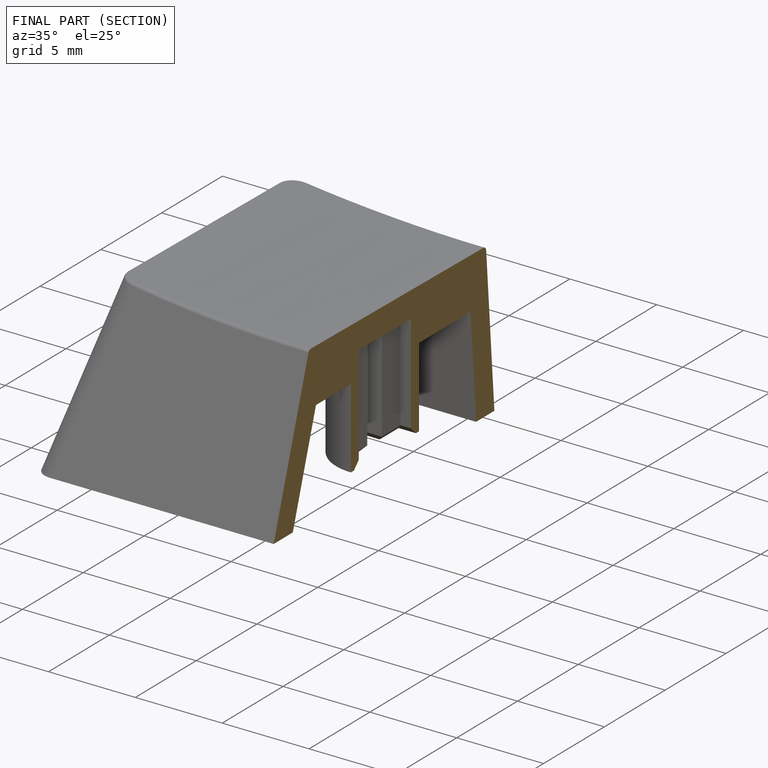
[diagram: finished part — half-section view (interior)]
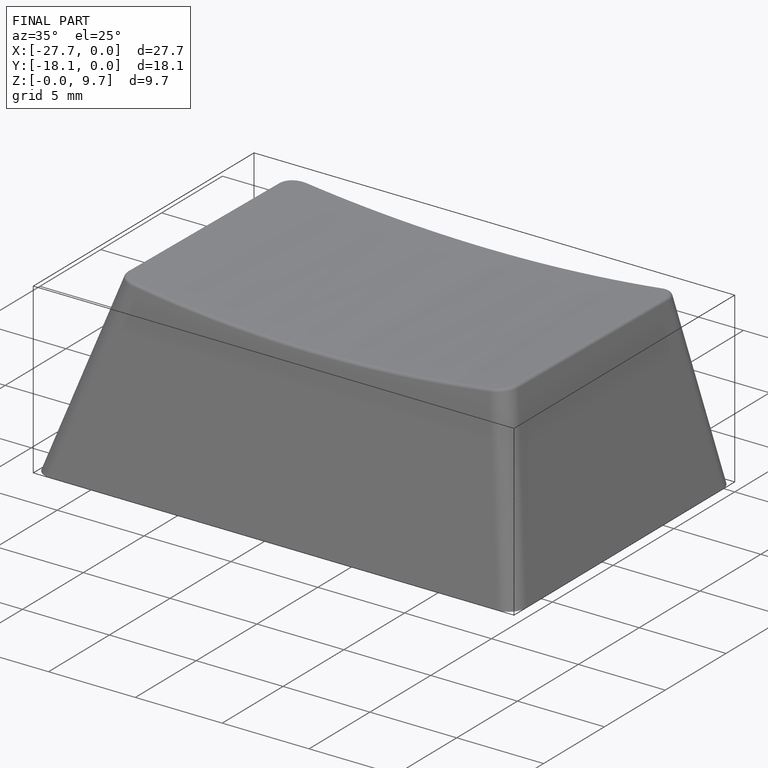
[diagram: finished part — iso view with bounding-box wireframe]
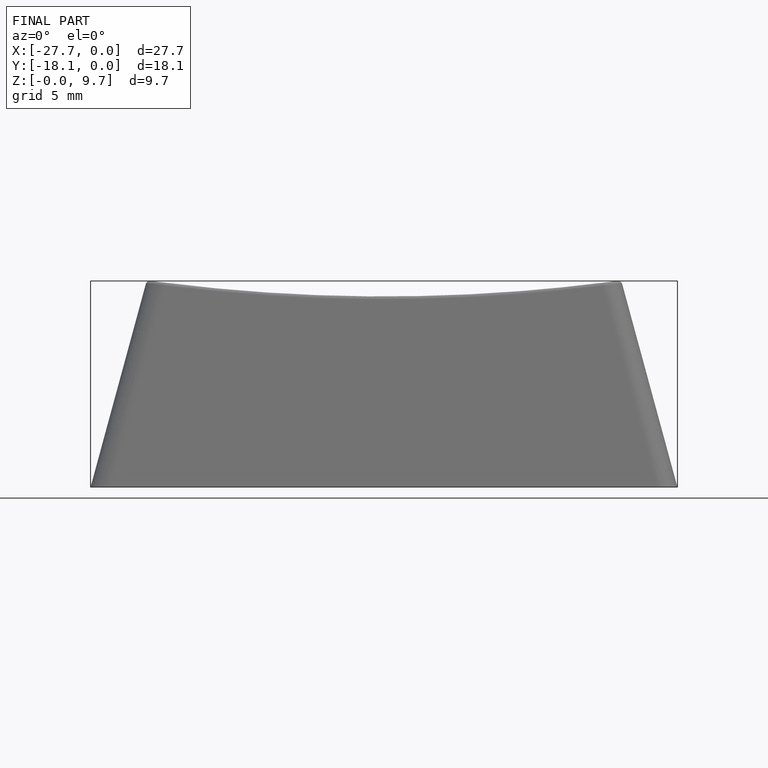
[diagram: finished part — front view with bounding-box wireframe]
